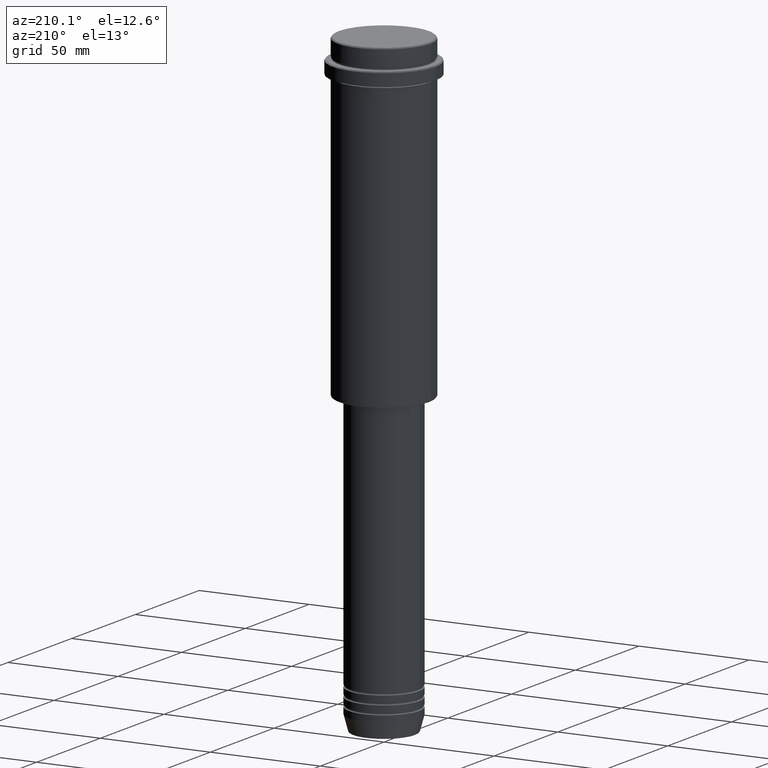
[diagram: clean part render]
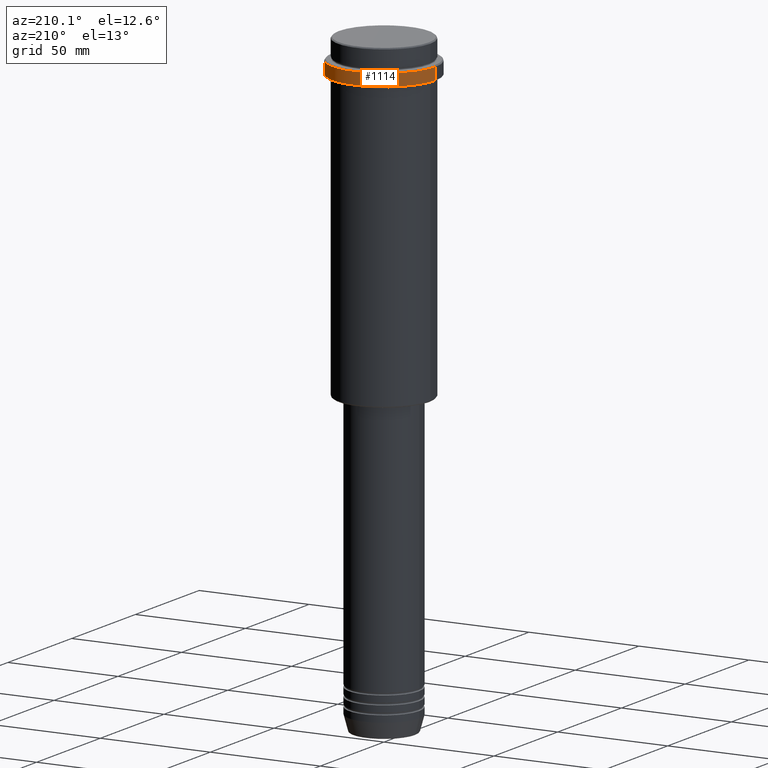
[diagram: same view with one face highlighted and labeled with its STEP entity id]
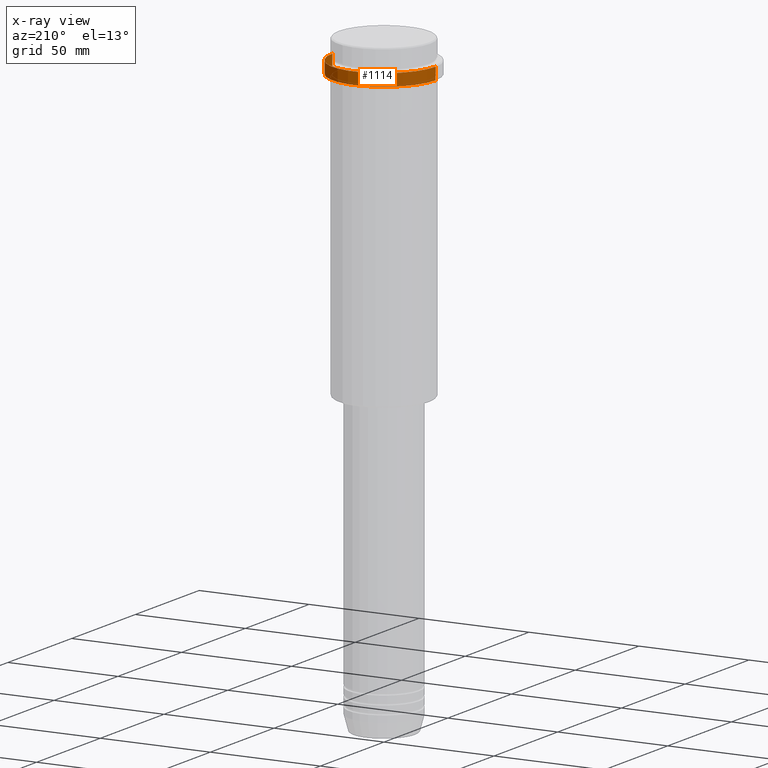
[diagram: x-ray of the same camera — body ghosted, the highlighted face saturated]
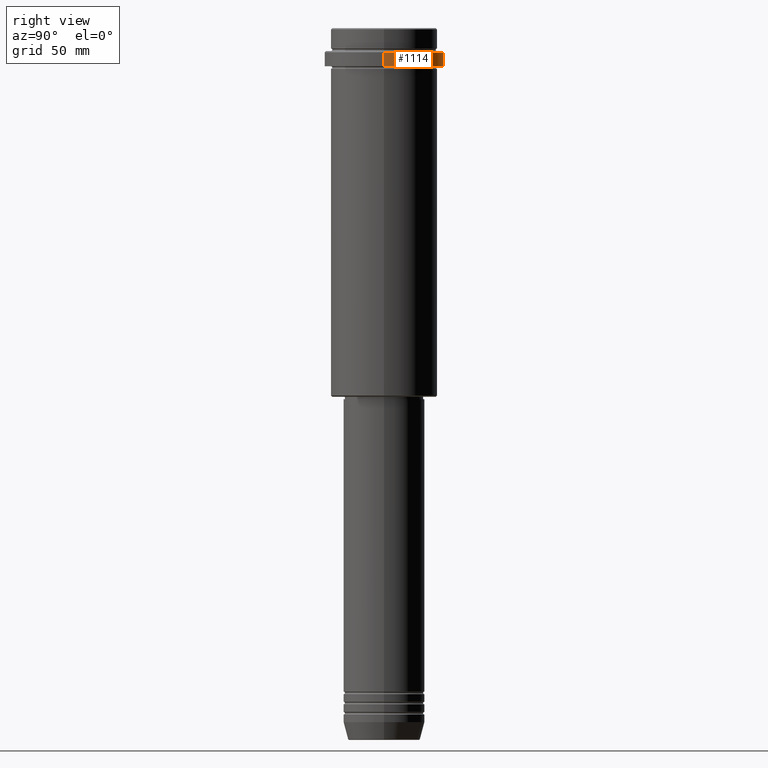
[diagram: same view with one face highlighted and labeled with its STEP entity id]
A machine part, auxiliary view. The second image highlights one B-rep face of the part: STEP entity #1114.
The next image is the same camera in x-ray: the body ghosted, the highlighted face saturated — about 0% of this face is hidden behind the body in this view.
A second angle (right view) of the same face is appended — the face is thin or edge-on in the first view.
In plain terms, the highlighted cylindrical surface (partial cylindrical patch) has radius 23.5 mm, axis along (-0, -0, 1).
Its self-contained STEP definition (entity closure, byte-faithful):
#14 = DIRECTION ( 'NONE',  ( 1.000000000000000000, 0.000000000000000000, 0.000000000000000000 ) ) ;
#15 = CIRCLE ( 'NONE', #1059, 23.50000000000000355 ) ;
#62 = DIRECTION ( 'NONE',  ( -0.000000000000000000, -0.000000000000000000, 1.000000000000000000 ) ) ;
#96 = CARTESIAN_POINT ( 'NONE',  ( 23.50000000000000355, 0.000000000000000000, -15.00000000000000178 ) ) ;
#114 = AXIS2_PLACEMENT_3D ( 'NONE', #1390, #315, #1313 ) ;
#144 = VERTEX_POINT ( 'NONE', #96 ) ;
#159 = ORIENTED_EDGE ( 'NONE', *, *, #345, .F. ) ;
#182 = ORIENTED_EDGE ( 'NONE', *, *, #555, .T. ) ;
#193 = CARTESIAN_POINT ( 'NONE',  ( -23.50000000000000711, 2.877919977996281109E-15, -15.00000000000000178 ) ) ;
#315 = DIRECTION ( 'NONE',  ( -0.000000000000000000, -0.000000000000000000, 1.000000000000000000 ) ) ;
#319 = LINE ( 'NONE', #1205, #949 ) ;
#342 = CARTESIAN_POINT ( 'NONE',  ( 0.000000000000000000, 0.000000000000000000, -15.00000000000000178 ) ) ;
#345 = EDGE_CURVE ( 'NONE', #144, #399, #319, .T. ) ;
#394 = AXIS2_PLACEMENT_3D ( 'NONE', #575, #1003, #14 ) ;
#399 = VERTEX_POINT ( 'NONE', #1244 ) ;
#411 = CARTESIAN_POINT ( 'NONE',  ( -23.50000000000000000, 2.877919977996280320E-15, 0.000000000000000000 ) ) ;
#458 = DIRECTION ( 'NONE',  ( 1.000000000000000000, 0.000000000000000000, 0.000000000000000000 ) ) ;
#465 = VERTEX_POINT ( 'NONE', #717 ) ;
#555 = EDGE_CURVE ( 'NONE', #1042, #465, #727, .T. ) ;
#575 = CARTESIAN_POINT ( 'NONE',  ( 0.000000000000000000, 0.000000000000000000, -9.499999999999973355 ) ) ;
#604 = EDGE_CURVE ( 'NONE', #465, #399, #1216, .T. ) ;
#640 = CYLINDRICAL_SURFACE ( 'NONE', #114, 23.50000000000000000 ) ;
#715 = ORIENTED_EDGE ( 'NONE', *, *, #604, .T. ) ;
#717 = CARTESIAN_POINT ( 'NONE',  ( -23.50000000000000000, 2.877919977996280320E-15, -9.499999999999973355 ) ) ;
#727 = LINE ( 'NONE', #411, #1396 ) ;
#756 = DIRECTION ( 'NONE',  ( -0.000000000000000000, -0.000000000000000000, 1.000000000000000000 ) ) ;
#765 = ORIENTED_EDGE ( 'NONE', *, *, #846, .T. ) ;
#771 = DIRECTION ( 'NONE',  ( -0.000000000000000000, -0.000000000000000000, 1.000000000000000000 ) ) ;
#846 = EDGE_CURVE ( 'NONE', #144, #1042, #15, .T. ) ;
#904 = EDGE_LOOP ( 'NONE', ( #765, #182, #715, #159 ) ) ;
#949 = VECTOR ( 'NONE', #756, 1000.000000000000000 ) ;
#1003 = DIRECTION ( 'NONE',  ( 0.000000000000000000, 0.000000000000000000, -1.000000000000000000 ) ) ;
#1042 = VERTEX_POINT ( 'NONE', #193 ) ;
#1059 = AXIS2_PLACEMENT_3D ( 'NONE', #342, #771, #458 ) ;
#1114 = ADVANCED_FACE ( 'NONE', ( #1191 ), #640, .T. ) ;
#1191 = FACE_OUTER_BOUND ( 'NONE', #904, .T. ) ;
#1205 = CARTESIAN_POINT ( 'NONE',  ( 23.50000000000000000, 0.000000000000000000, 0.000000000000000000 ) ) ;
#1216 = CIRCLE ( 'NONE', #394, 23.50000000000000000 ) ;
#1244 = CARTESIAN_POINT ( 'NONE',  ( 23.50000000000000000, 0.000000000000000000, -9.499999999999973355 ) ) ;
#1313 = DIRECTION ( 'NONE',  ( 1.000000000000000000, 0.000000000000000000, 0.000000000000000000 ) ) ;
#1390 = CARTESIAN_POINT ( 'NONE',  ( 0.000000000000000000, 0.000000000000000000, 0.000000000000000000 ) ) ;
#1396 = VECTOR ( 'NONE', #62, 1000.000000000000000 ) ;